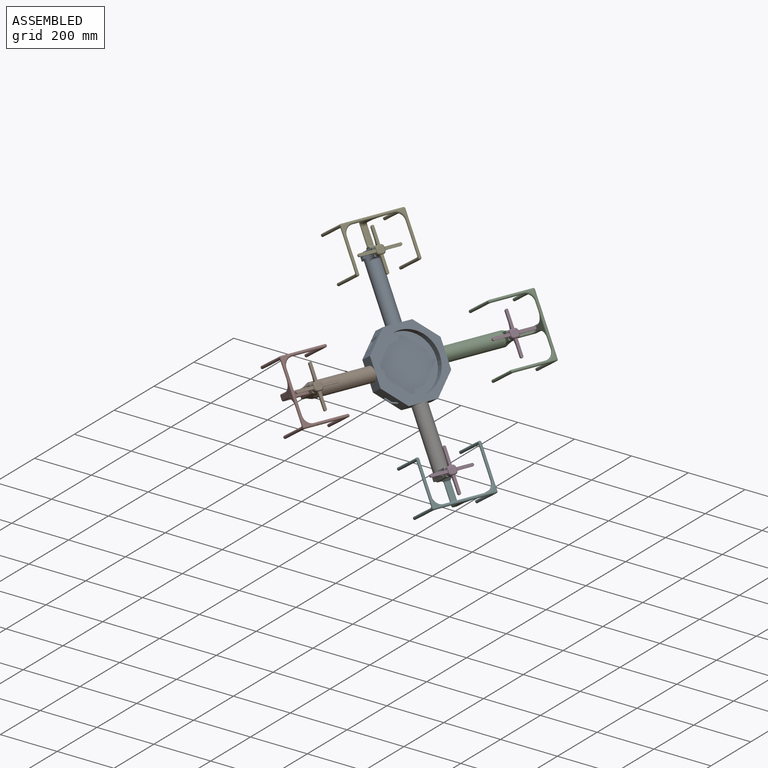
[diagram: assembled view]
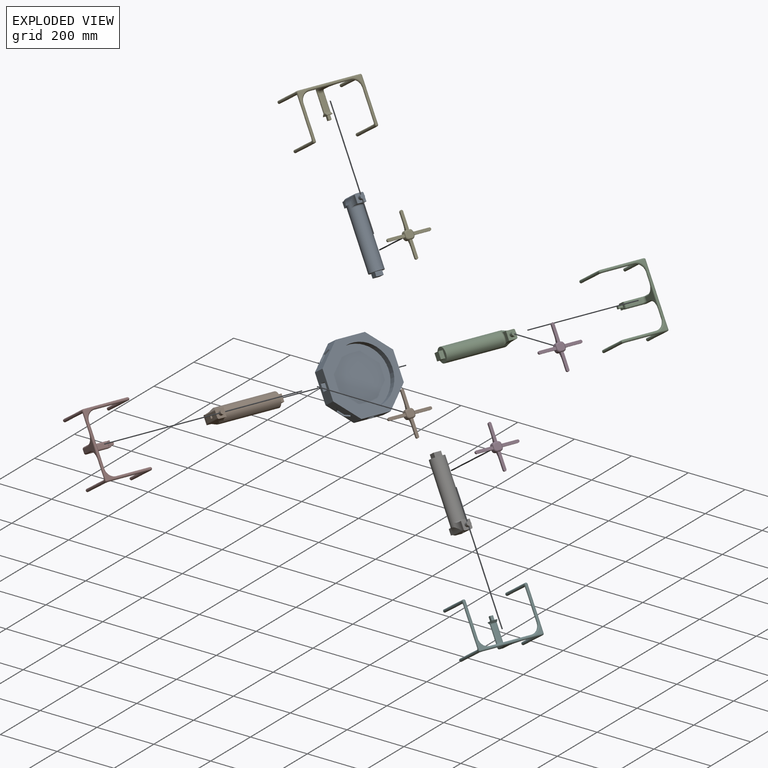
[diagram: exploded view]
GUIDED TOUR — MATED ASSEMBLY (Onshape document 5ddf4c11a638fa7d3c791eff, AutoMate assembly 5ddf4c11a638fa7d3c791eff_e8b8767c8db5815c13600c57_59f446b05d3c1877de8c272b_default)

This assembly has 13 components, labeled P0..P12 below (a component is one placed occurrence of a part; the same part can appear more than once), held together by 12 mates. A mate is a constraint between two components; its type names the relative motion it leaves free:
  FASTENED — locks the two components together rigidly (no relative motion),
  REVOLUTE — leaves rotation about the listed axis free (a hinge).
Axis/direction vectors are unit vectors and 'through' points are millimeter coordinates, both in the assembly's world frame.

MATES
  1. FASTENED "Fastened 5": P5 <-> P6, direction (-0.530, 0.219, 0.819) through (232.93, -71.47, 219.62) mm
  2. FASTENED "Fastened 1": P6 <-> P0, direction (-0.530, 0.219, 0.819) through (101.59, -17.06, 400.85) mm
  3. FASTENED "Fastened 4": P8 <-> P0, direction (0.530, -0.219, -0.819) through (-10.45, 29.34, 574.04) mm
  4. REVOLUTE "Revolute 3": P1 <-> P9, axis (-0.757, 0.313, -0.574) through (-37.49, -322.82, 521.86) mm
  5. REVOLUTE "Revolute 1": P11 <-> P6, axis (-0.757, 0.313, -0.574) through (268.88, -86.36, 246.86) mm
  6. FASTENED "Fastened 6": P2 <-> P10, direction (-0.383, -0.924, 0.000) through (183.50, 312.38, 494.61) mm
  7. FASTENED "Fastened 7": P4 <-> P8, direction (0.530, -0.219, -0.819) through (-122.87, 75.91, 769.61) mm
  8. FASTENED "Fastened 3": P9 <-> P0, direction (0.383, 0.924, 0.000) through (5.12, -91.52, 487.44) mm
  9. FASTENED "Fastened 8": P7 <-> P9, direction (0.383, 0.924, 0.000) through (-73.44, -307.93, 494.61) mm
  10. REVOLUTE "Revolute 2": P3 <-> P10, axis (-0.757, 0.313, -0.574) through (219.45, 297.49, 521.86) mm
  11. FASTENED "Fastened 2": P10 <-> P0, direction (-0.383, -0.924, 0.000) through (86.03, 103.81, 487.44) mm
  12. REVOLUTE "Revolute 4": P12 <-> P8, axis (-0.757, 0.313, -0.574) through (-86.92, 61.02, 796.86) mm

ASSEMBLY ORDER
  1. P10 — the base component [order verified]
  2. P2 [order verified]
  3. P0 [order verified]
  4. P8 [order verified]
  5. P4 [order verified]
  6. P6 [order verified]
  7. P5 [order verified]
  8. P9 [order verified]
  9. P7 [order verified]
  10. P12 [order verified]
  11. P11 [order verified]
  12. P3 [order verified]
  13. P1 [order verified]
(P0, P1, P2, P3, P4, P5, P6, P7, P8, P9, P11, P12 verified with a relaxed clearance tolerance: the source model stores slight part interference there.)
Order-tag legend:
  [order verified] — this step's position reverses a verified removal order: the component was checked to insert without passing through the ones already placed.

Of the 13 components, 1 carries the full construction recipe — the FeatureScript program that regenerates the part's solid from scratch; the rest are supplied as boundary geometry only.
Because this assembly has more than 12 components, the tour below covers the 12 most significant ones individually (every recipe-attached component first, then the largest by part volume), in assembly order; the remaining 1 are summarized together in a grouped section at the end.
Each toured component is shown spotlighted twice — in the assembled view, then in the exploded view, where a leader line traces a displaced component back to its assembled socket (saturated green if recipe-attached, orange if geometry-only; every other component desaturated gray) — followed by its recipe or geometry summary and the mates that hold it.
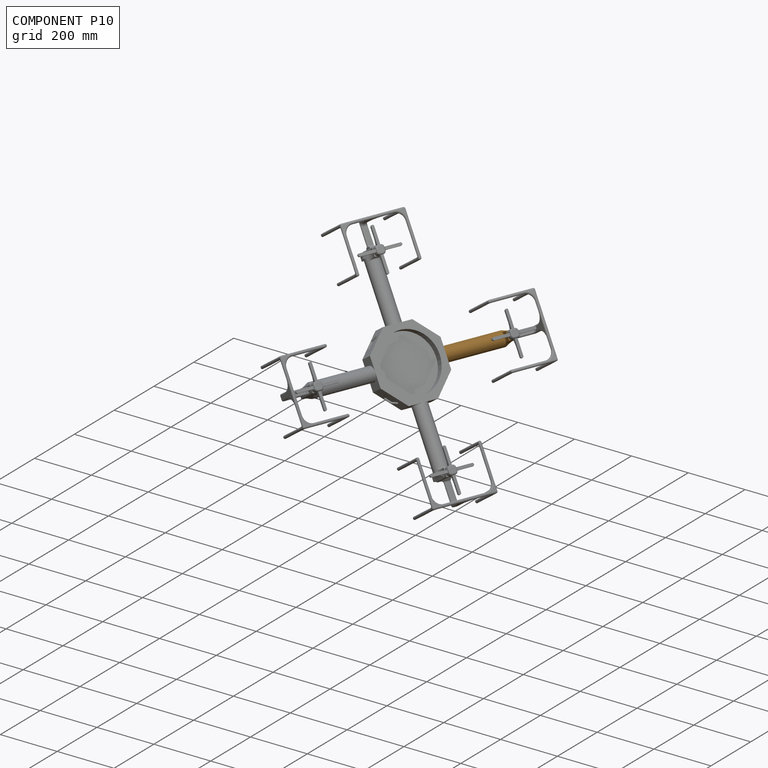
[diagram: component P10 — assembled]
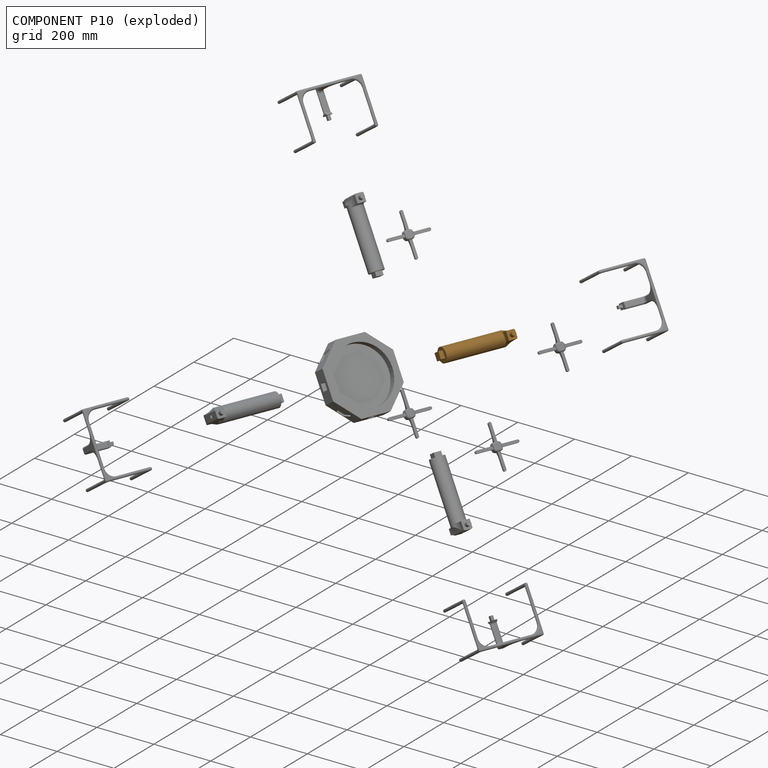
[diagram: component P10 — exploded]
COMPONENT P10 — geometry summary (no construction recipe available for this part):
  bounding box: 245.0 x 105.0 x 62.9 mm
  B-rep topology: 1 solid, 36 faces, 178 edges
  volume: 485700 mm^3 (30% of its bounding box)
  symmetry: mirror-symmetric across its y mid-plane
Held by: FASTENED mate "Fastened 6" to P2; REVOLUTE mate "Revolute 2" to P3; FASTENED mate "Fastened 2" to P0.
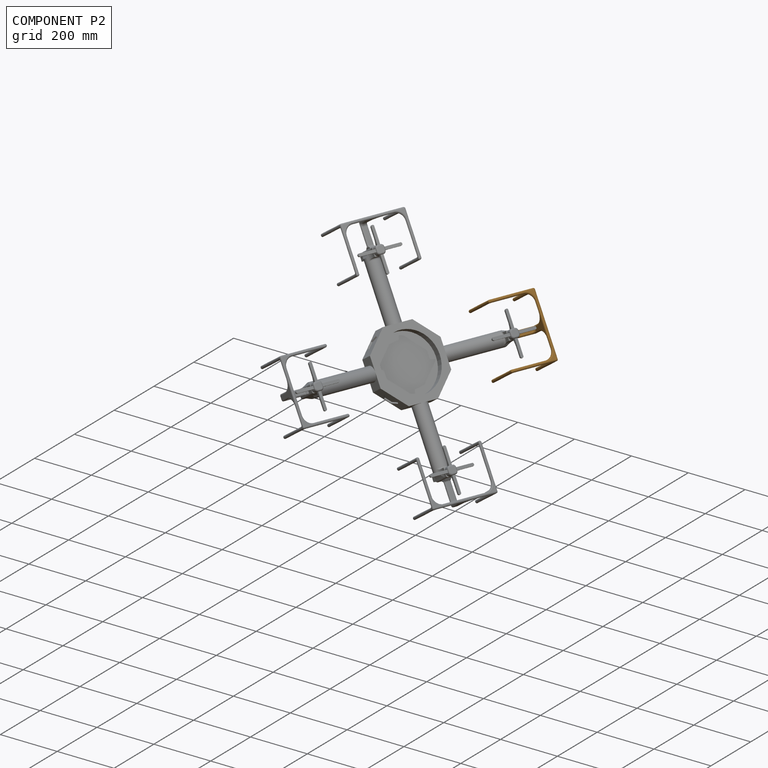
[diagram: component P2 — assembled]
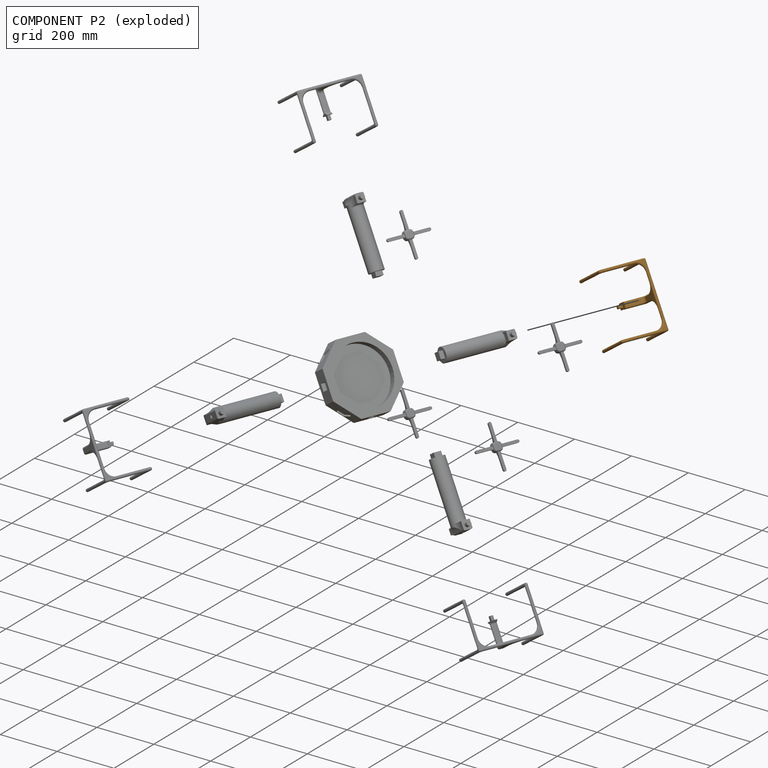
[diagram: component P2 — exploded]
COMPONENT P2 — geometry summary (no construction recipe available for this part):
  bounding box: 226.0 x 161.7 x 131.7 mm
  B-rep topology: 1 solid, 71 faces, 392 edges
  volume: 119252 mm^3 (2% of its bounding box)
  symmetry: mirror-symmetric across its x mid-plane
Held by: FASTENED mate "Fastened 6" to P10.
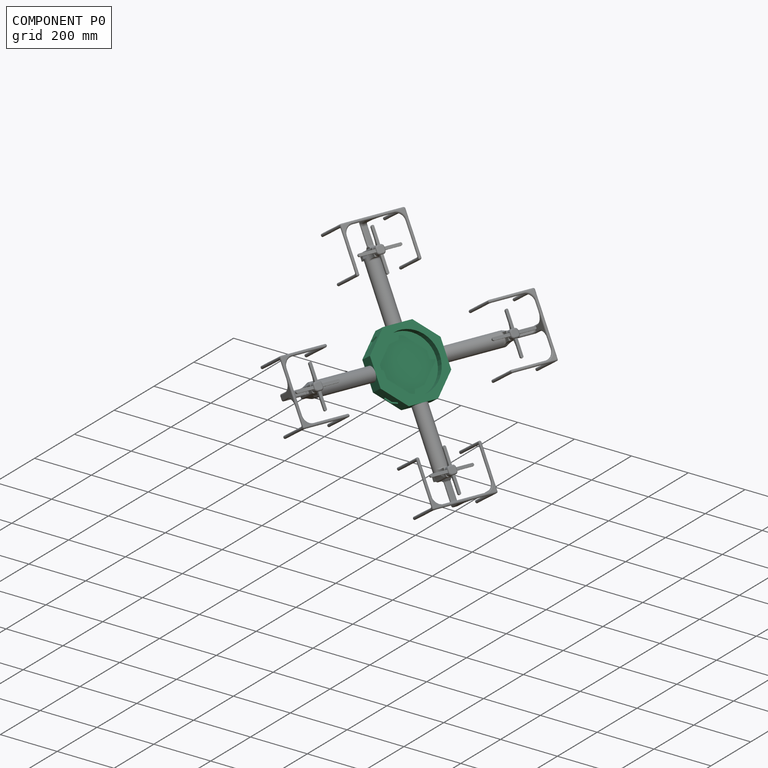
[diagram: component P0 — assembled]
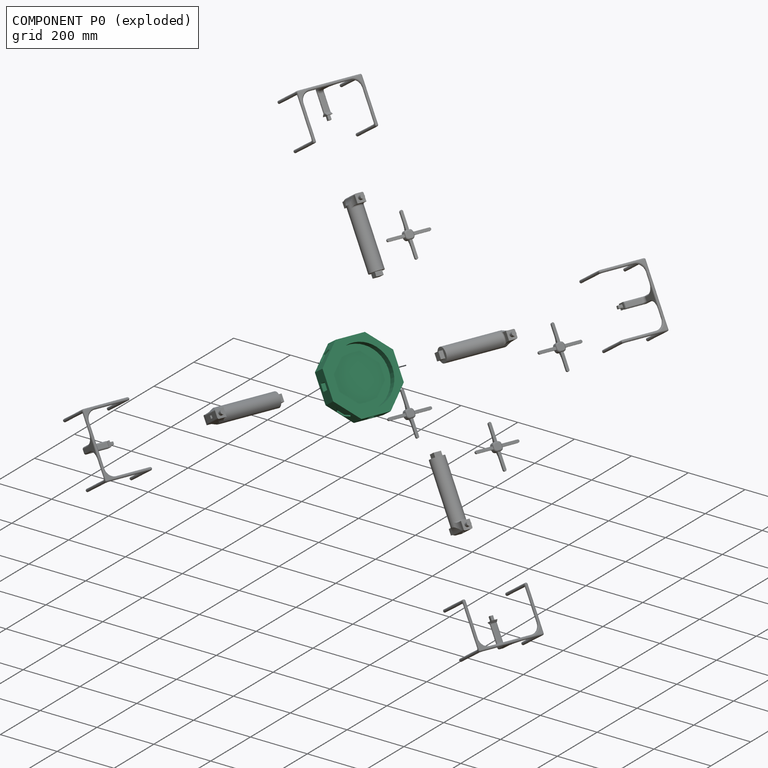
[diagram: component P0 — exploded]
COMPONENT P0 — recipe-attached (CADFS 00303719, mesh-verified: the recipe's output STEP matches this component's geometry to below the mesh-comparison resolution (tessellation chordal tolerance ~0.564 mm)).
Held by: FASTENED mate "Fastened 1" to P6; FASTENED mate "Fastened 4" to P8; FASTENED mate "Fastened 3" to P9; FASTENED mate "Fastened 2" to P10.
Construction recipe (FeatureScript — the CAD program that rebuilds this solid; sketch coordinates are in the units given by the * unit suffixes, e.g. mm):

FeatureScript 1511;
import(path : "onshape/std/geometry.fs", version : "1511.0");
import(path : "onshape/std/common.fs", version : "1511.0");
const mm = millimeter;
const VERTEX = EntityType.VERTEX;
const EDGE = EntityType.EDGE;
const FACE = EntityType.FACE;
const BODY = EntityType.BODY;
function v(x, y){return vector(x, y);}
function OD(order){return orderDisambiguation(order);}
function OSD(set){return originalSetDisambiguation(set);}
function TD(topology){return topologyDisambiguation(topology);}
function TDD(query){return trueDependencyDisambiguation(query);}
function sQuery(a, b, c) {return sketchEntityQuery(a, b, c);}

annotation { "Feature Type Name" : "Feature", "Feature Type Description" : "" }
export const myFeature = defineFeature(function(context is Context, id is Id, definition is map)
    precondition{}
    {
        {
            var Q0;
            Q0=qCreatedBy(makeId("Top.planeOp"),FACE);
            var sketch = newSketch(context, id + "F0", { "sketchPlane" : qUnion([Q0])});
            skCircle(sketch, "E0.cCircle", {"center": v(0, 0) * mm, "radius": 130.66 * mm, "construction": true});
            skLineSegment(sketch, "E0.0", {"start": v(0, -130.66) * mm, "end": v(-92.39, -92.39) * mm});
            skLineSegment(sketch, "E0.1", {"start": v(-92.39, -92.39) * mm, "end": v(-130.66, 0) * mm});
            skLineSegment(sketch, "E0.2", {"start": v(-130.66, 0) * mm, "end": v(-92.39, 92.39) * mm});
            skLineSegment(sketch, "E0.3", {"start": v(-92.39, 92.39) * mm, "end": v(0, 130.66) * mm});
            skLineSegment(sketch, "E0.4", {"start": v(0, 130.66) * mm, "end": v(92.39, 92.39) * mm});
            skLineSegment(sketch, "E0.5", {"start": v(92.39, 92.39) * mm, "end": v(130.66, 0) * mm});
            skLineSegment(sketch, "E0.6", {"start": v(130.66, 0) * mm, "end": v(92.39, -92.39) * mm});
            skLineSegment(sketch, "E0.7", {"start": v(92.39, -92.39) * mm, "end": v(0, -130.66) * mm});
            skSolve(sketch);
        }
        {
            var Q0;
            Q0=makeQuery(id+"F0.imprint","IMPRINT",FACE,{"disambiguationData":[TD([[makeQuery(id+"F0.imprint","IMPRINT",EDGE,{"derivedFrom":sQuery(id+"F0.wireOp",EDGE,"E0.0")}),-1.0]])]});
            extrude(context, id + "F1", {"entities" : qUnion([Q0]), "depth" : 50 * mm});
        }
        {
            var Q0;
            Q0=makeQuery(id+"F1.opExtrude","SWEPT_FACE",FACE,{"disambiguationData":[OSD([sQuery(id+"F0.wireOp",EDGE,"E0.0")])]});
            var sketch = newSketch(context, id + "F2", { "sketchPlane" : qUnion([Q0])});
            skLineSegment(sketch, "E1.bottom", {"start": v(12.5, 12.5) * mm, "end": v(-12.5, 12.5) * mm});
            skLineSegment(sketch, "E1.top", {"start": v(12.5, 37.5) * mm, "end": v(-12.5, 37.5) * mm});
            skLineSegment(sketch, "E1.left", {"start": v(12.5, 12.5) * mm, "end": v(12.5, 37.5) * mm});
            skLineSegment(sketch, "E1.right", {"start": v(-12.5, 12.5) * mm, "end": v(-12.5, 37.5) * mm});
            skPoint(sketch, "E1.middle", {"position": v(0, 25) * mm});
            skPoint(sketch, "E1.middle.positionSnap0", {"position": v(-50, 25) * mm});
            skPoint(sketch, "E1.centerSnap0", {"position": v(-50, 25) * mm});
            skSolve(sketch);
        }
        {
            var Q0;
            Q0=makeQuery(id+"F2.imprint","IMPRINT",FACE,{"disambiguationData":[TD([[makeQuery(id+"F2.imprint","IMPRINT",EDGE,{"derivedFrom":sQuery(id+"F2.wireOp",EDGE,"E1.bottom")}),-1.0]])]});
            extrude(context, id + "F3", {"entities" : qUnion([Q0]), "operationType" : NewBodyOperationType.REMOVE, "oppositeDirection" : true, "depth" : 15 * mm});
        }
        {
            var Q0;
            Q0=makeQuery(id+"F1.opExtrude","SWEPT_FACE",FACE,{"disambiguationData":[OSD([sQuery(id+"F0.wireOp",EDGE,"E0.2")])]});
            var sketch = newSketch(context, id + "F4", { "sketchPlane" : qUnion([Q0])});
            skLineSegment(sketch, "E2.bottom", {"start": v(12.5, 12.5) * mm, "end": v(-12.5, 12.5) * mm});
            skLineSegment(sketch, "E2.top", {"start": v(12.5, 37.5) * mm, "end": v(-12.5, 37.5) * mm});
            skLineSegment(sketch, "E2.left", {"start": v(12.5, 12.5) * mm, "end": v(12.5, 37.5) * mm});
            skLineSegment(sketch, "E2.right", {"start": v(-12.5, 12.5) * mm, "end": v(-12.5, 37.5) * mm});
            skPoint(sketch, "E2.middle", {"position": v(0, 25) * mm});
            skPoint(sketch, "E2.middle.positionSnap0", {"position": v(-50, 25) * mm});
            skPoint(sketch, "E2.centerSnap0", {"position": v(-50, 25) * mm});
            skSolve(sketch);
        }
        {
            var Q0;
            Q0=makeQuery(id+"F4.imprint","IMPRINT",FACE,{"disambiguationData":[TD([[makeQuery(id+"F4.imprint","IMPRINT",EDGE,{"derivedFrom":sQuery(id+"F4.wireOp",EDGE,"E2.bottom")}),-1.0]])]});
            extrude(context, id + "F5", {"entities" : qUnion([Q0]), "operationType" : NewBodyOperationType.REMOVE, "oppositeDirection" : true, "depth" : 15 * mm});
        }
        {
            var Q0;
            Q0=makeQuery(id+"F1.opExtrude","SWEPT_FACE",FACE,{"disambiguationData":[OSD([sQuery(id+"F0.wireOp",EDGE,"E0.4")])]});
            var sketch = newSketch(context, id + "F6", { "sketchPlane" : qUnion([Q0])});
            skLineSegment(sketch, "E3.bottom", {"start": v(12.5, 12.5) * mm, "end": v(-12.5, 12.5) * mm});
            skLineSegment(sketch, "E3.top", {"start": v(12.5, 37.5) * mm, "end": v(-12.5, 37.5) * mm});
            skLineSegment(sketch, "E3.left", {"start": v(12.5, 12.5) * mm, "end": v(12.5, 37.5) * mm});
            skLineSegment(sketch, "E3.right", {"start": v(-12.5, 12.5) * mm, "end": v(-12.5, 37.5) * mm});
            skPoint(sketch, "E3.middle", {"position": v(0, 25) * mm});
            skPoint(sketch, "E3.middle.positionSnap0", {"position": v(-50, 25) * mm});
            skPoint(sketch, "E3.centerSnap0", {"position": v(-50, 25) * mm});
            skSolve(sketch);
        }
        {
            var Q0;
            Q0=makeQuery(id+"F6.imprint","IMPRINT",FACE,{"disambiguationData":[TD([[makeQuery(id+"F6.imprint","IMPRINT",EDGE,{"derivedFrom":sQuery(id+"F6.wireOp",EDGE,"E3.bottom")}),-1.0]])]});
            extrude(context, id + "F7", {"entities" : qUnion([Q0]), "operationType" : NewBodyOperationType.REMOVE, "oppositeDirection" : true, "depth" : 15 * mm});
        }
        {
            var Q0;
            Q0=makeQuery(id+"F1.opExtrude","SWEPT_FACE",FACE,{"disambiguationData":[OSD([sQuery(id+"F0.wireOp",EDGE,"E0.6")])]});
            var sketch = newSketch(context, id + "F8", { "sketchPlane" : qUnion([Q0])});
            skLineSegment(sketch, "E4.bottom", {"start": v(12.5, 12.5) * mm, "end": v(-12.5, 12.5) * mm});
            skLineSegment(sketch, "E4.top", {"start": v(12.5, 37.5) * mm, "end": v(-12.5, 37.5) * mm});
            skLineSegment(sketch, "E4.left", {"start": v(12.5, 12.5) * mm, "end": v(12.5, 37.5) * mm});
            skLineSegment(sketch, "E4.right", {"start": v(-12.5, 12.5) * mm, "end": v(-12.5, 37.5) * mm});
            skPoint(sketch, "E4.middle", {"position": v(0, 25) * mm});
            skPoint(sketch, "E4.middle.positionSnap0", {"position": v(-50, 25) * mm});
            skPoint(sketch, "E4.centerSnap0", {"position": v(-50, 25) * mm});
            skSolve(sketch);
        }
        {
            var Q0;
            Q0=makeQuery(id+"F8.imprint","IMPRINT",FACE,{"disambiguationData":[TD([[makeQuery(id+"F8.imprint","IMPRINT",EDGE,{"derivedFrom":sQuery(id+"F8.wireOp",EDGE,"E4.bottom")}),-1.0]])]});
            extrude(context, id + "F9", {"entities" : qUnion([Q0]), "operationType" : NewBodyOperationType.REMOVE, "oppositeDirection" : true, "depth" : 15 * mm});
        }
        {
            var Q0;
            Q0=makeQuery(id+"F1.opExtrude","SWEPT_FACE",FACE,{"disambiguationData":[OSD([sQuery(id+"F0.wireOp",EDGE,"E0.7")])]});
            var sketch = newSketch(context, id + "F10", { "sketchPlane" : qUnion([Q0])});
            skCircle(sketch, "E5.cCircle", {"center": v(0, 25) * mm, "radius": 21.65 * mm, "construction": true});
            skPoint(sketch, "E5.cCircle.centerSnap0", {"position": v(-50, 25) * mm});
            skLineSegment(sketch, "E5.0", {"start": v(25, 25) * mm, "end": v(12.5, 3.35) * mm});
            skLineSegment(sketch, "E5.1", {"start": v(12.5, 3.35) * mm, "end": v(-12.5, 3.35) * mm});
            skLineSegment(sketch, "E5.2", {"start": v(-12.5, 3.35) * mm, "end": v(-25, 25) * mm});
            skLineSegment(sketch, "E5.3", {"start": v(-25, 25) * mm, "end": v(-12.5, 46.65) * mm});
            skLineSegment(sketch, "E5.4", {"start": v(-12.5, 46.65) * mm, "end": v(12.5, 46.65) * mm});
            skLineSegment(sketch, "E5.5", {"start": v(12.5, 46.65) * mm, "end": v(25, 25) * mm});
            skPoint(sketch, "E5.0.midPoint", {"position": v(18.75, 14.17) * mm});
            skSolve(sketch);
        }
        {
            var Q0;
            Q0=makeQuery(id+"F10.imprint","IMPRINT",FACE,{"disambiguationData":[TD([[makeQuery(id+"F10.imprint","IMPRINT",EDGE,{"derivedFrom":sQuery(id+"F10.wireOp",EDGE,"E5.0")}),-1.0]])]});
            extrude(context, id + "F11", {"entities" : qUnion([Q0]), "operationType" : NewBodyOperationType.REMOVE, "oppositeDirection" : true, "depth" : 5 * mm});
        }
        {
            var Q0;
            Q0=makeQuery(id+"F1.opExtrude","SWEPT_FACE",FACE,{"disambiguationData":[OSD([sQuery(id+"F0.wireOp",EDGE,"E0.5")])]});
            var sketch = newSketch(context, id + "F12", { "sketchPlane" : qUnion([Q0])});
            skCircle(sketch, "E6.cCircle", {"center": v(0, 25) * mm, "radius": 21.65 * mm, "construction": true});
            skPoint(sketch, "E6.cCircle.centerSnap0", {"position": v(0, 50) * mm});
            skPoint(sketch, "E6.cCircle.centerSnap1", {"position": v(-50, 25) * mm});
            skLineSegment(sketch, "E6.0", {"start": v(25, 25) * mm, "end": v(12.5, 3.35) * mm});
            skLineSegment(sketch, "E6.1", {"start": v(12.5, 3.35) * mm, "end": v(-12.5, 3.35) * mm});
            skLineSegment(sketch, "E6.2", {"start": v(-12.5, 3.35) * mm, "end": v(-25, 25) * mm});
            skLineSegment(sketch, "E6.3", {"start": v(-25, 25) * mm, "end": v(-12.5, 46.65) * mm});
            skLineSegment(sketch, "E6.4", {"start": v(-12.5, 46.65) * mm, "end": v(12.5, 46.65) * mm});
            skLineSegment(sketch, "E6.5", {"start": v(12.5, 46.65) * mm, "end": v(25, 25) * mm});
            skPoint(sketch, "E6.0.midPoint", {"position": v(18.75, 14.17) * mm});
            skSolve(sketch);
        }
        {
            var Q0;
            Q0=makeQuery(id+"F12.imprint","IMPRINT",FACE,{"disambiguationData":[TD([[makeQuery(id+"F12.imprint","IMPRINT",EDGE,{"derivedFrom":sQuery(id+"F12.wireOp",EDGE,"E6.0")}),-1.0]])]});
            extrude(context, id + "F13", {"entities" : qUnion([Q0]), "operationType" : NewBodyOperationType.REMOVE, "oppositeDirection" : true, "depth" : 5 * mm});
        }
        {
            var Q0;
            Q0=makeQuery(id+"F1.opExtrude","SWEPT_FACE",FACE,{"disambiguationData":[OSD([sQuery(id+"F0.wireOp",EDGE,"E0.1")])]});
            var sketch = newSketch(context, id + "F14", { "sketchPlane" : qUnion([Q0])});
            skCircle(sketch, "E7.cCircle", {"center": v(0, 25) * mm, "radius": 21.65 * mm, "construction": true});
            skPoint(sketch, "E7.cCircle.centerSnap0", {"position": v(-50, 25) * mm});
            skLineSegment(sketch, "E7.0", {"start": v(-12.5, 46.65) * mm, "end": v(12.5, 46.65) * mm});
            skLineSegment(sketch, "E7.1", {"start": v(12.5, 46.65) * mm, "end": v(25, 25) * mm});
            skLineSegment(sketch, "E7.2", {"start": v(25, 25) * mm, "end": v(12.5, 3.35) * mm});
            skLineSegment(sketch, "E7.3", {"start": v(12.5, 3.35) * mm, "end": v(-12.5, 3.35) * mm});
            skLineSegment(sketch, "E7.4", {"start": v(-12.5, 3.35) * mm, "end": v(-25, 25) * mm});
            skLineSegment(sketch, "E7.5", {"start": v(-25, 25) * mm, "end": v(-12.5, 46.65) * mm});
            skPoint(sketch, "E7.0.midPoint", {"position": v(0, 46.65) * mm});
            skSolve(sketch);
        }
        {
            var Q0;
            Q0=makeQuery(id+"F14.imprint","IMPRINT",FACE,{"disambiguationData":[TD([[makeQuery(id+"F14.imprint","IMPRINT",EDGE,{"derivedFrom":sQuery(id+"F14.wireOp",EDGE,"E7.0")}),-1.0]])]});
            extrude(context, id + "F15", {"entities" : qUnion([Q0]), "operationType" : NewBodyOperationType.REMOVE, "oppositeDirection" : true, "depth" : 5 * mm});
        }
        {
            var Q0;
            Q0=makeQuery(id+"F1.opExtrude","SWEPT_FACE",FACE,{"disambiguationData":[OSD([sQuery(id+"F0.wireOp",EDGE,"E0.3")])]});
            var sketch = newSketch(context, id + "F16", { "sketchPlane" : qUnion([Q0])});
            skCircle(sketch, "E8.cCircle", {"center": v(0, 25) * mm, "radius": 21.65 * mm, "construction": true});
            skPoint(sketch, "E8.cCircle.centerSnap0", {"position": v(-50, 25) * mm});
            skPoint(sketch, "E8.cCircle.perimeterSnap0", {"position": v(0, 50) * mm});
            skLineSegment(sketch, "E8.0", {"start": v(-12.5, 46.65) * mm, "end": v(12.5, 46.65) * mm});
            skLineSegment(sketch, "E8.1", {"start": v(12.5, 46.65) * mm, "end": v(25, 25) * mm});
            skLineSegment(sketch, "E8.2", {"start": v(25, 25) * mm, "end": v(12.5, 3.35) * mm});
            skLineSegment(sketch, "E8.3", {"start": v(12.5, 3.35) * mm, "end": v(-12.5, 3.35) * mm});
            skLineSegment(sketch, "E8.4", {"start": v(-12.5, 3.35) * mm, "end": v(-25, 25) * mm});
            skLineSegment(sketch, "E8.5", {"start": v(-25, 25) * mm, "end": v(-12.5, 46.65) * mm});
            skPoint(sketch, "E8.0.midPoint", {"position": v(0, 46.65) * mm});
            skPoint(sketch, "E8.0.midPoint.positionSnap0", {"position": v(0, 50) * mm});
            skSolve(sketch);
        }
        {
            var Q0;
            Q0=makeQuery(id+"F16.imprint","IMPRINT",FACE,{"disambiguationData":[TD([[makeQuery(id+"F16.imprint","IMPRINT",EDGE,{"derivedFrom":sQuery(id+"F16.wireOp",EDGE,"E8.0")}),-1.0]])]});
            extrude(context, id + "F17", {"entities" : qUnion([Q0]), "operationType" : NewBodyOperationType.REMOVE, "oppositeDirection" : true, "depth" : 5 * mm});
        }
        {
            var Q0;
            Q0=makeQuery(id+"F1.opExtrude","CAP_FACE",FACE,{"disambiguationData":[OSD([sQuery(id+"F0.wireOp",EDGE,"E0.0"),sQuery(id+"F0.wireOp",EDGE,"E0.1"),sQuery(id+"F0.wireOp",EDGE,"E0.2"),sQuery(id+"F0.wireOp",EDGE,"E0.3"),sQuery(id+"F0.wireOp",EDGE,"E0.4"),sQuery(id+"F0.wireOp",EDGE,"E0.5"),sQuery(id+"F0.wireOp",EDGE,"E0.6"),sQuery(id+"F0.wireOp",EDGE,"E0.7")])],"isStart":false});
            var sketch = newSketch(context, id + "F18", { "sketchPlane" : qUnion([Q0])});
            skCircle(sketch, "E9", {"center": v(0, 0) * mm, "radius": 100 * mm});
            skSolve(sketch);
        }
        {
            var Q0;
            Q0 = qSketchRegion(id + "F18", true);
            extrude(context, id + "F19", {"entities" : qUnion([Q0]), "operationType" : NewBodyOperationType.REMOVE, "oppositeDirection" : true, "depth" : 25 * mm});
        }
        {
            var Q0;
            Q0=makeQuery(id+"F1.opExtrude","CAP_FACE",FACE,{"disambiguationData":[OSD([sQuery(id+"F0.wireOp",EDGE,"E0.0"),sQuery(id+"F0.wireOp",EDGE,"E0.1"),sQuery(id+"F0.wireOp",EDGE,"E0.2"),sQuery(id+"F0.wireOp",EDGE,"E0.3"),sQuery(id+"F0.wireOp",EDGE,"E0.4"),sQuery(id+"F0.wireOp",EDGE,"E0.5"),sQuery(id+"F0.wireOp",EDGE,"E0.6"),sQuery(id+"F0.wireOp",EDGE,"E0.7")])],"isStart":true});
            var sketch = newSketch(context, id + "F20", { "sketchPlane" : qUnion([Q0])});
            skCircle(sketch, "E10", {"center": v(0, 0) * mm, "radius": 100 * mm});
            skSolve(sketch);
        }
        {
            var Q0;
            Q0 = qSketchRegion(id + "F20", true);
            extrude(context, id + "F21", {"entities" : qUnion([Q0]), "operationType" : NewBodyOperationType.ADD, "depth" : 20 * mm});
        }
        {
            var Q0;
            Q0=makeQuery(id+"F1.opExtrude","SWEPT_BODY",BODY,{"disambiguationData":[OSD([sQuery(id+"F0.wireOp",EDGE,"E0.0"),sQuery(id+"F0.wireOp",EDGE,"E0.1"),sQuery(id+"F0.wireOp",EDGE,"E0.2"),sQuery(id+"F0.wireOp",EDGE,"E0.3"),sQuery(id+"F0.wireOp",EDGE,"E0.4"),sQuery(id+"F0.wireOp",EDGE,"E0.5"),sQuery(id+"F0.wireOp",EDGE,"E0.6"),sQuery(id+"F0.wireOp",EDGE,"E0.7")])]});
            transform(context, id + "F22", {"entities" : qUnion([Q0]), "transformType" : TransformType.TRANSLATION_3D, "dx" : 0 * mm, "dy" : 0 * mm, "dz" : 10 * mm, "makeCopy" : false});
        }
    });
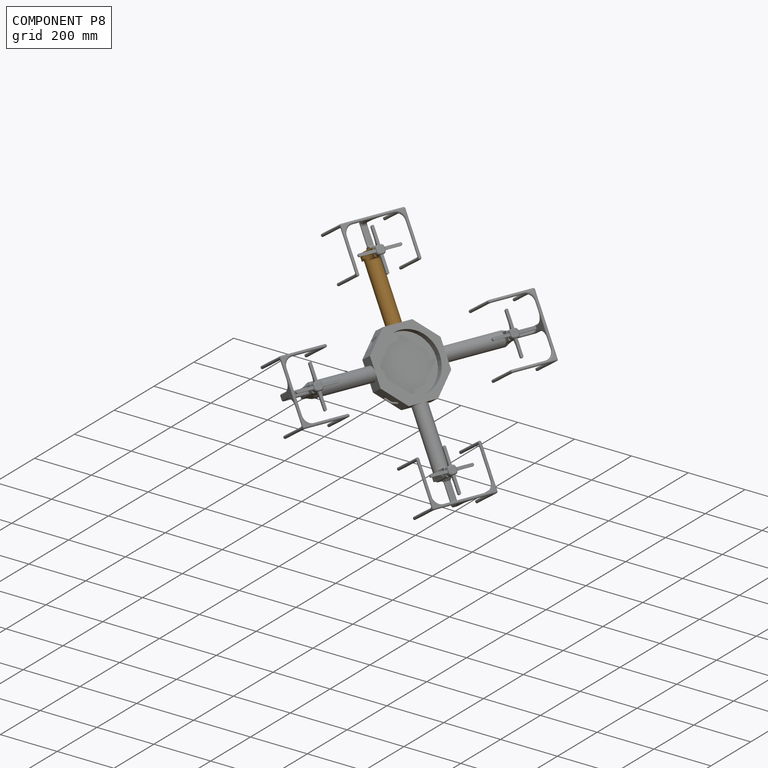
[diagram: component P8 — assembled]
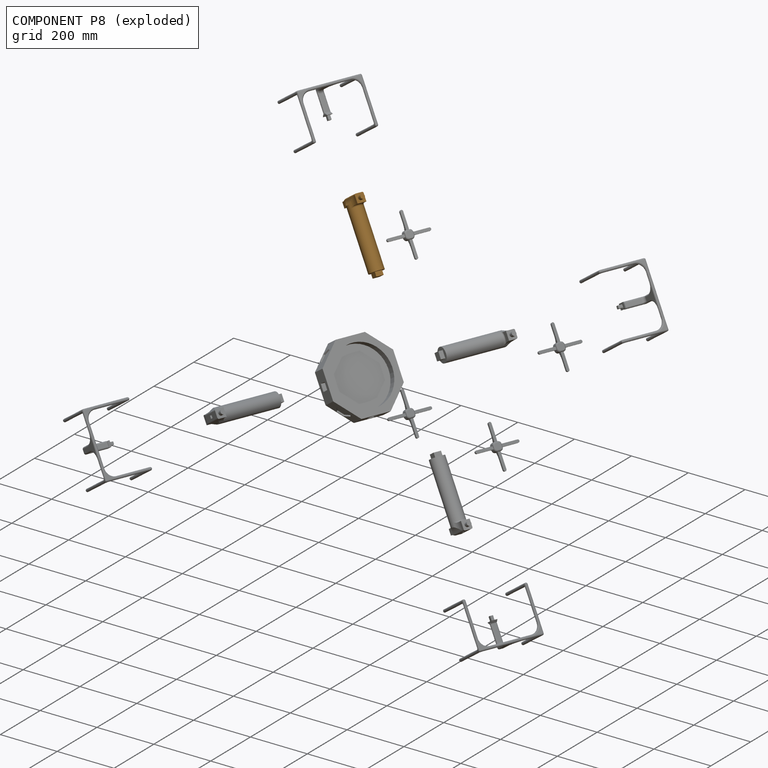
[diagram: component P8 — exploded]
COMPONENT P8 — geometry summary (no construction recipe available for this part):
  bounding box: 245.0 x 105.0 x 62.9 mm
  B-rep topology: 1 solid, 36 faces, 178 edges
  volume: 485700 mm^3 (30% of its bounding box)
  symmetry: mirror-symmetric across its y mid-plane
Held by: FASTENED mate "Fastened 4" to P0; FASTENED mate "Fastened 7" to P4; REVOLUTE mate "Revolute 4" to P12.
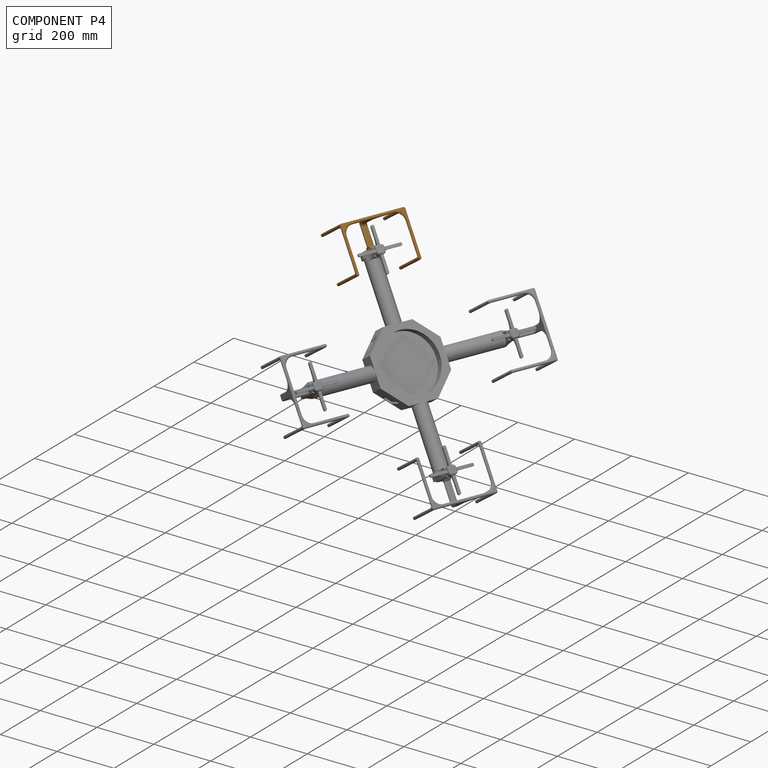
[diagram: component P4 — assembled]
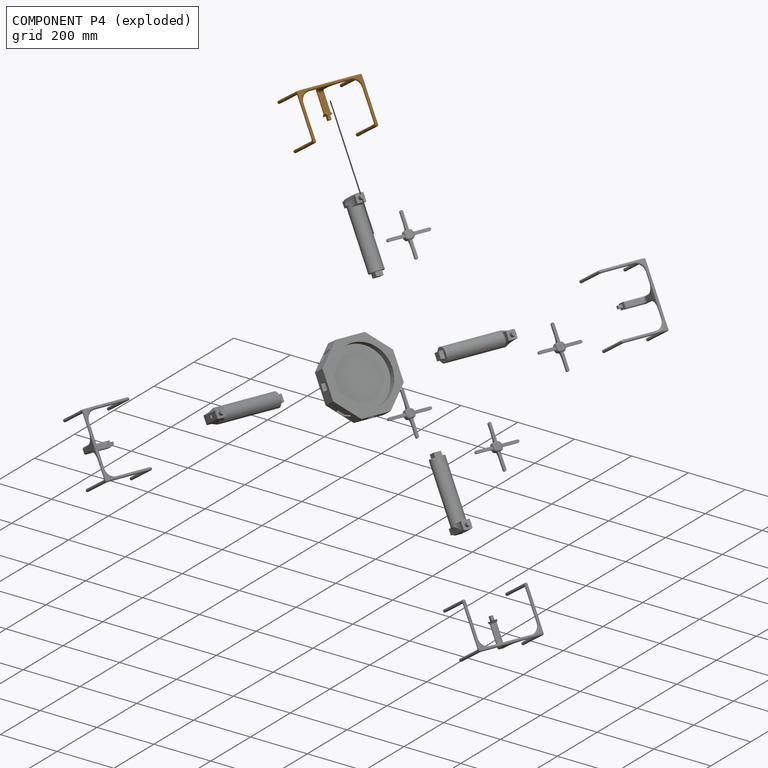
[diagram: component P4 — exploded]
COMPONENT P4 — geometry summary (no construction recipe available for this part):
  bounding box: 226.0 x 161.7 x 131.7 mm
  B-rep topology: 1 solid, 71 faces, 392 edges
  volume: 119252 mm^3 (2% of its bounding box)
  symmetry: mirror-symmetric across its x mid-plane
Held by: FASTENED mate "Fastened 7" to P8.
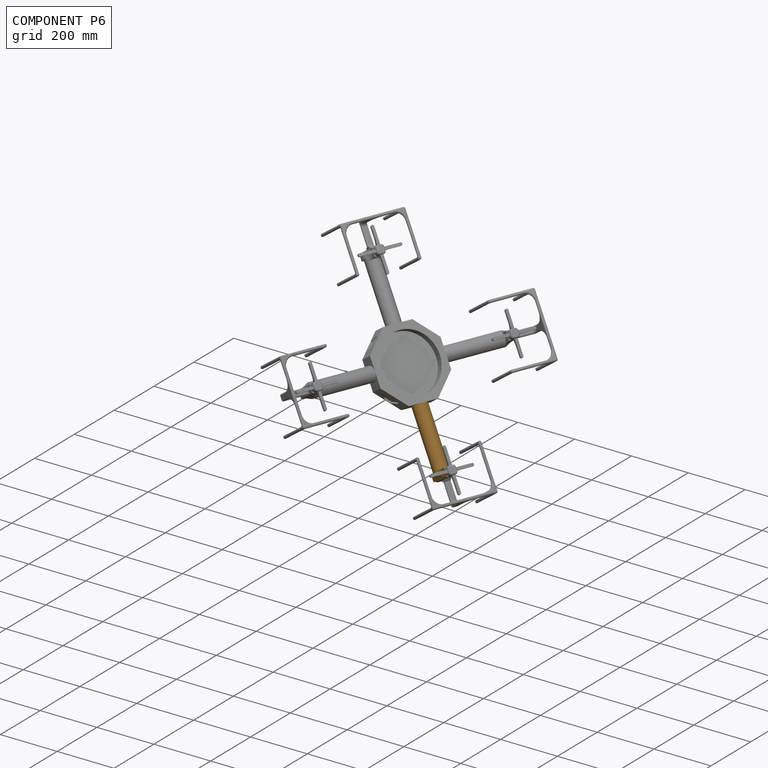
[diagram: component P6 — assembled]
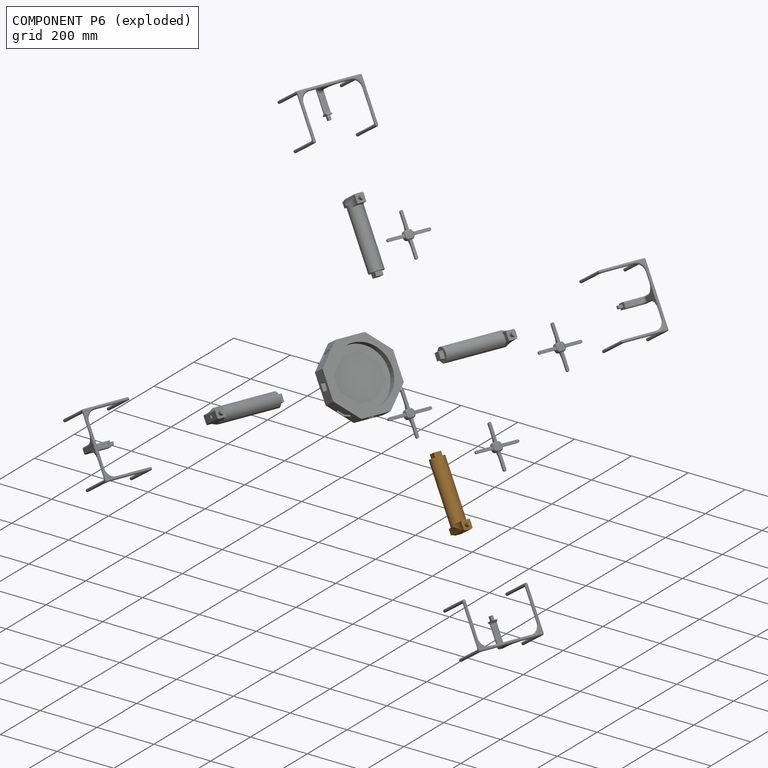
[diagram: component P6 — exploded]
COMPONENT P6 — geometry summary (no construction recipe available for this part):
  bounding box: 245.0 x 105.0 x 62.9 mm
  B-rep topology: 1 solid, 36 faces, 178 edges
  volume: 485700 mm^3 (30% of its bounding box)
  symmetry: mirror-symmetric across its y mid-plane
Held by: FASTENED mate "Fastened 5" to P5; FASTENED mate "Fastened 1" to P0; REVOLUTE mate "Revolute 1" to P11.
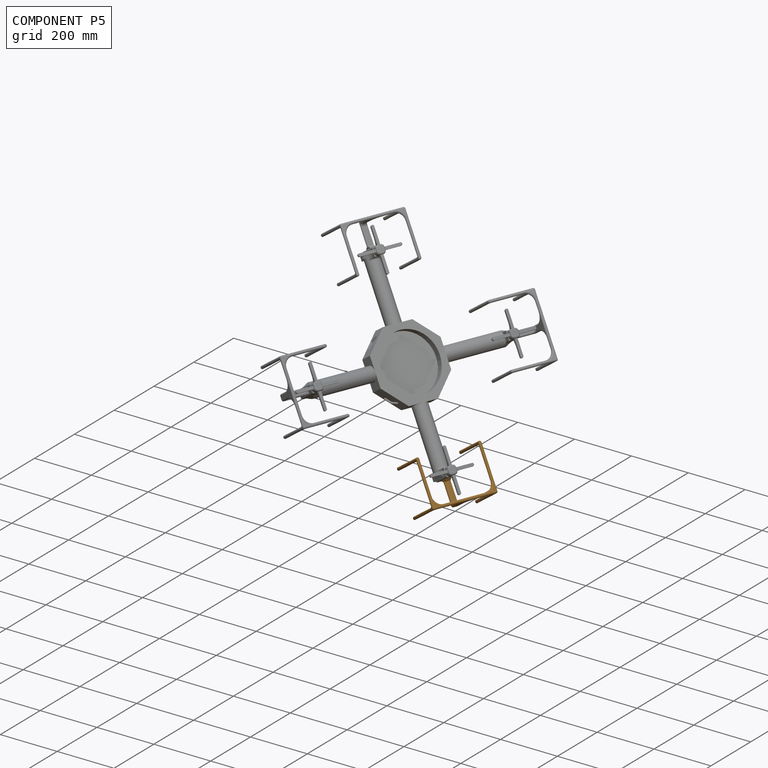
[diagram: component P5 — assembled]
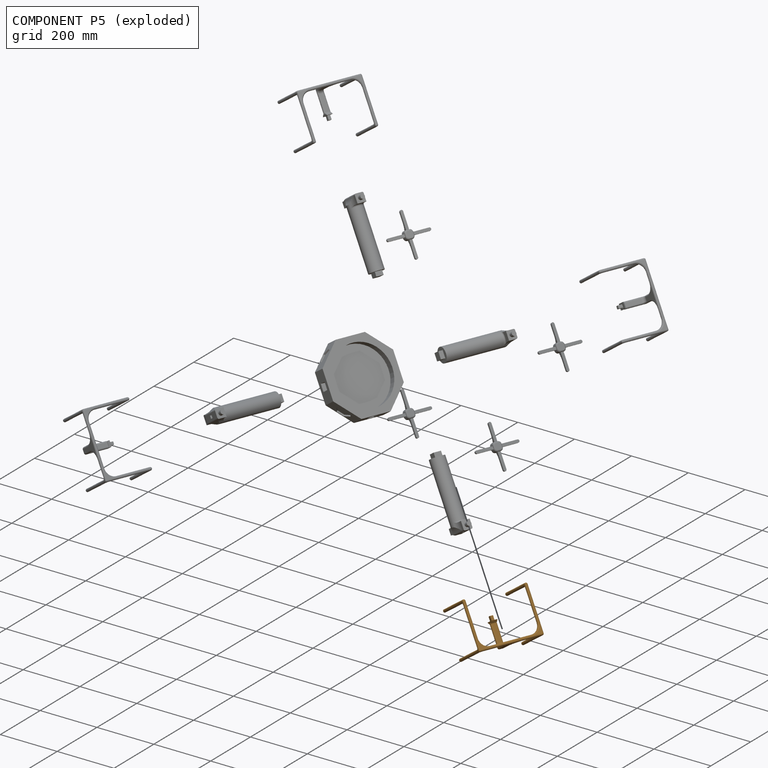
[diagram: component P5 — exploded]
COMPONENT P5 — geometry summary (no construction recipe available for this part):
  bounding box: 226.0 x 161.7 x 131.7 mm
  B-rep topology: 1 solid, 71 faces, 392 edges
  volume: 119252 mm^3 (2% of its bounding box)
  symmetry: mirror-symmetric across its x mid-plane
Held by: FASTENED mate "Fastened 5" to P6.
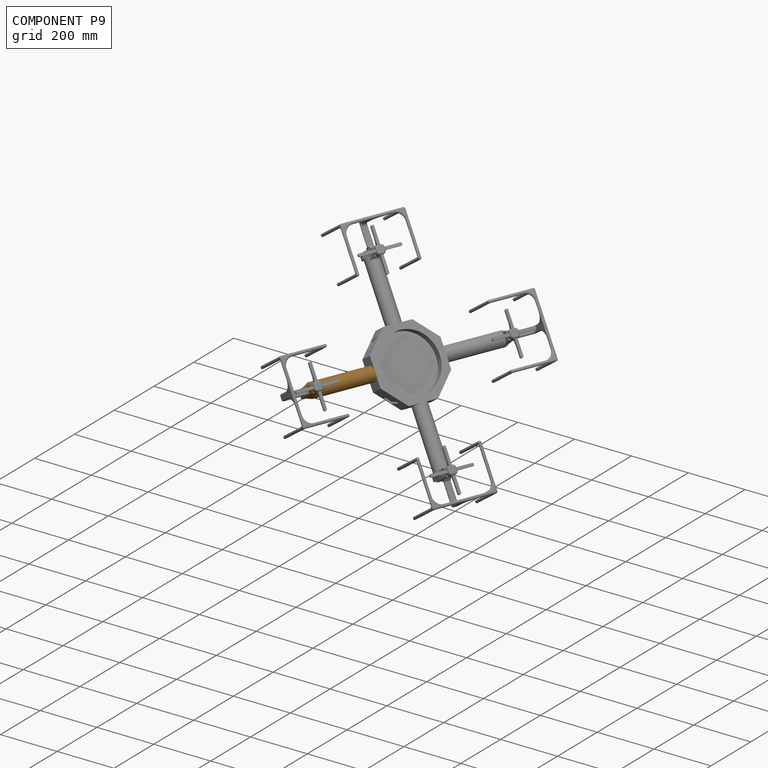
[diagram: component P9 — assembled]
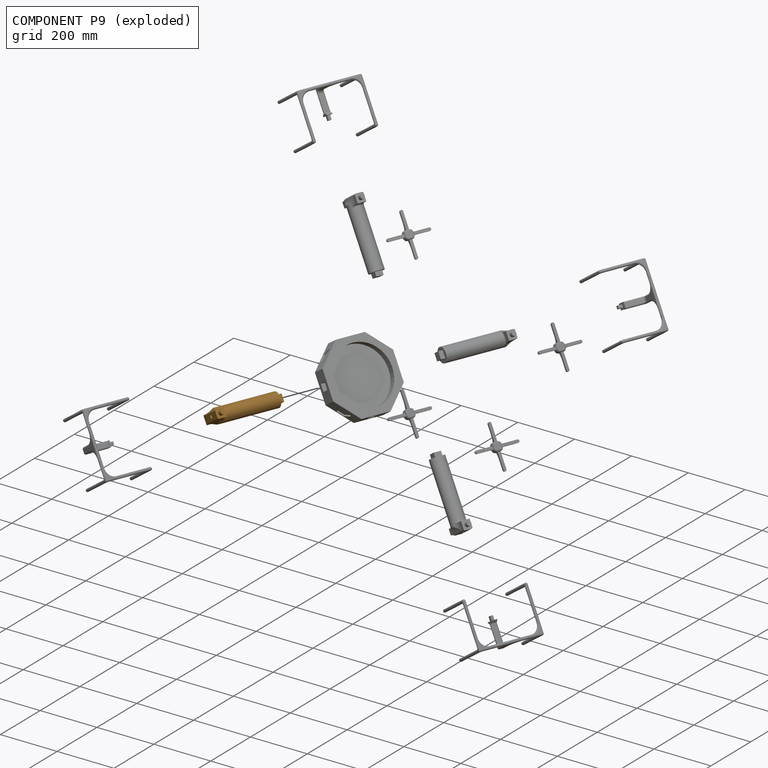
[diagram: component P9 — exploded]
COMPONENT P9 — geometry summary (no construction recipe available for this part):
  bounding box: 245.0 x 105.0 x 62.9 mm
  B-rep topology: 1 solid, 36 faces, 178 edges
  volume: 485700 mm^3 (30% of its bounding box)
  symmetry: mirror-symmetric across its y mid-plane
Held by: REVOLUTE mate "Revolute 3" to P1; FASTENED mate "Fastened 3" to P0; FASTENED mate "Fastened 8" to P7.
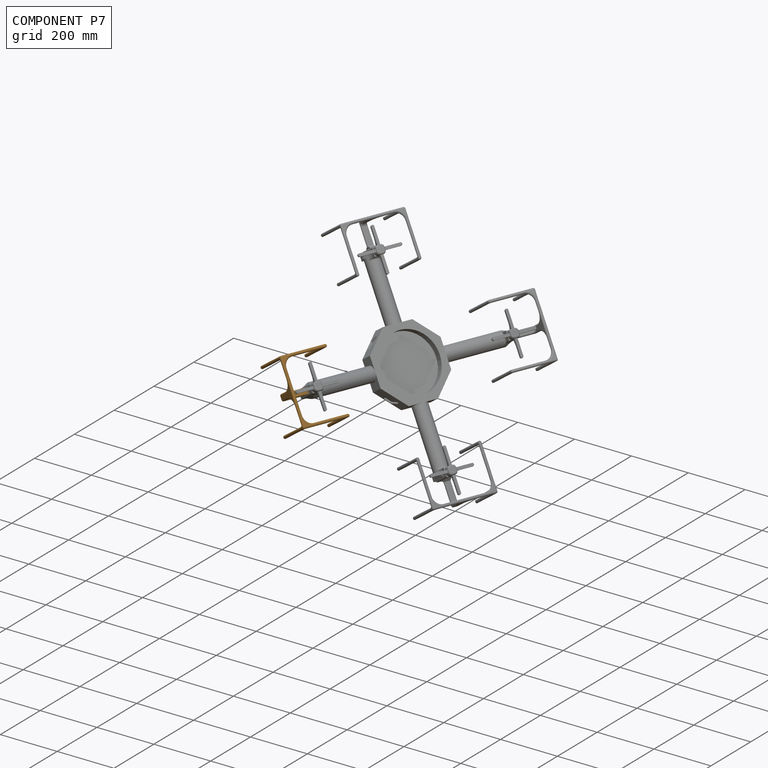
[diagram: component P7 — assembled]
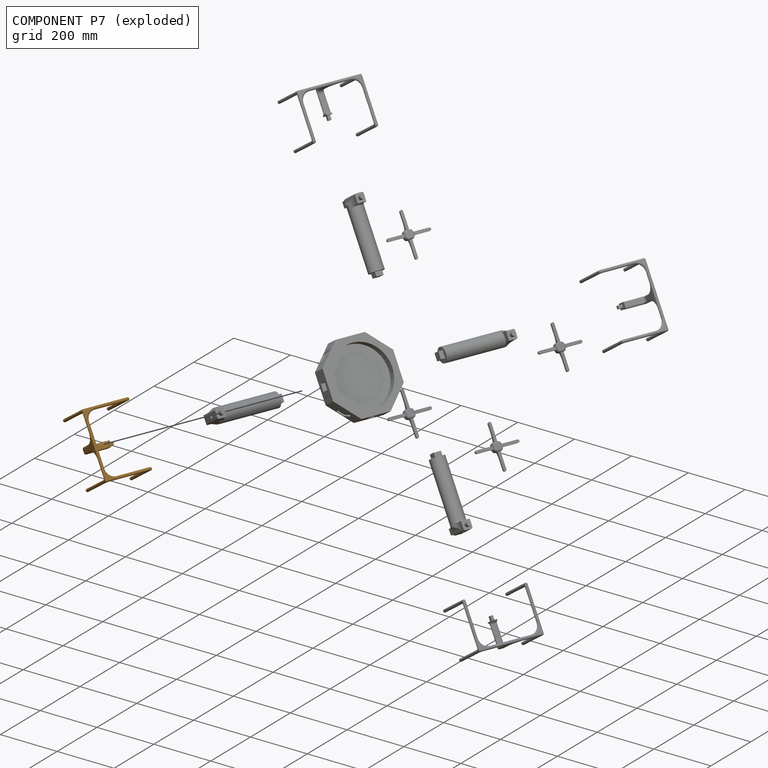
[diagram: component P7 — exploded]
COMPONENT P7 — geometry summary (no construction recipe available for this part):
  bounding box: 226.0 x 161.7 x 131.7 mm
  B-rep topology: 1 solid, 71 faces, 392 edges
  volume: 119252 mm^3 (2% of its bounding box)
  symmetry: mirror-symmetric across its x mid-plane
Held by: FASTENED mate "Fastened 8" to P9.
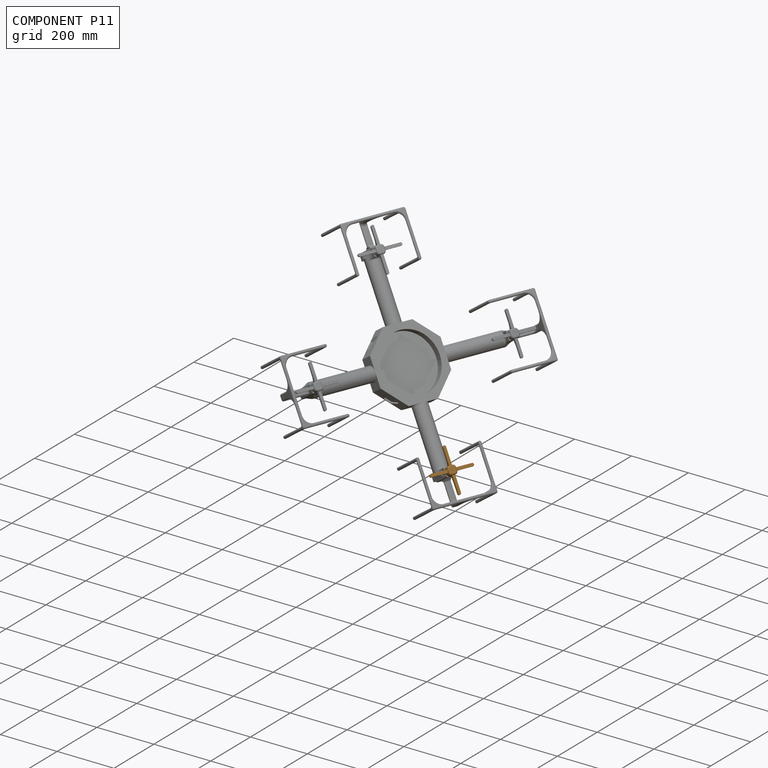
[diagram: component P11 — assembled]
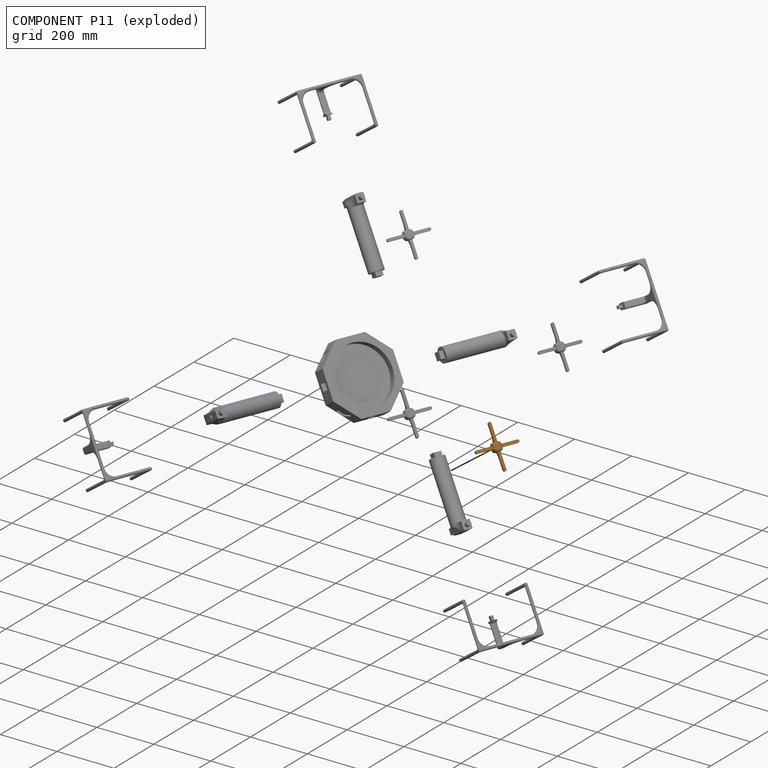
[diagram: component P11 — exploded]
COMPONENT P11 — geometry summary (no construction recipe available for this part):
  bounding box: 150.0 x 150.0 x 20.0 mm
  B-rep topology: 1 solid, 52 faces, 242 edges
  volume: 35812 mm^3 (8% of its bounding box)
  symmetry: 4-fold rotationally symmetric about the z axis; mirror-symmetric across its x mid-plane, y mid-plane
Held by: REVOLUTE mate "Revolute 1" to P6.
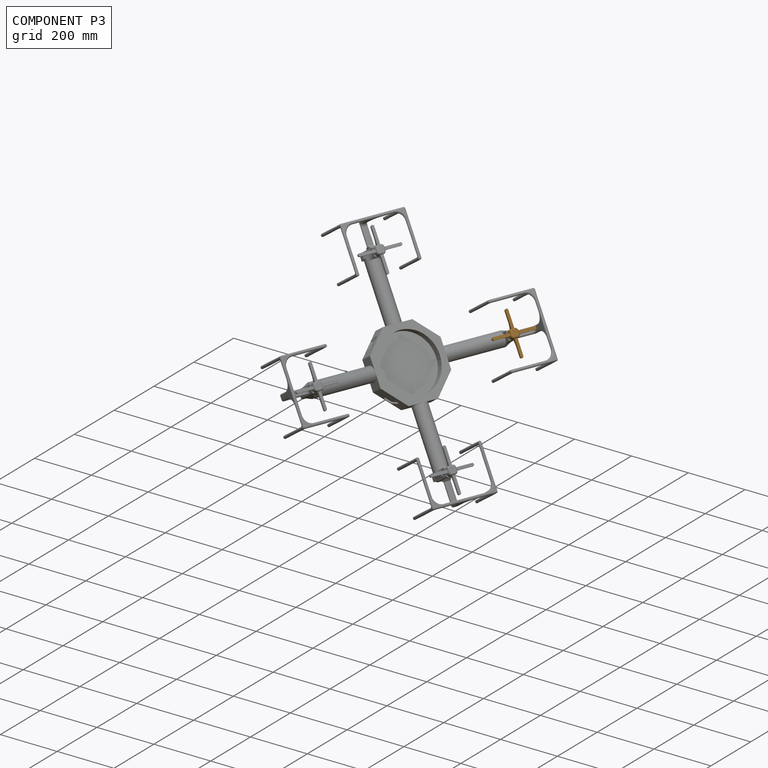
[diagram: component P3 — assembled]
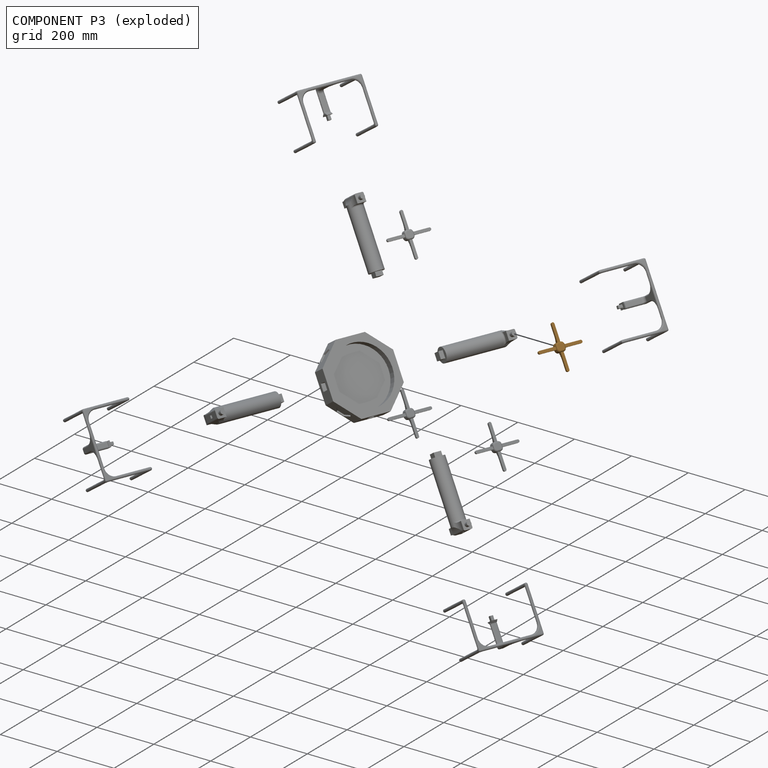
[diagram: component P3 — exploded]
COMPONENT P3 — geometry summary (no construction recipe available for this part):
  bounding box: 150.0 x 150.0 x 20.0 mm
  B-rep topology: 1 solid, 52 faces, 242 edges
  volume: 35812 mm^3 (8% of its bounding box)
  symmetry: 4-fold rotationally symmetric about the z axis; mirror-symmetric across its x mid-plane, y mid-plane
Held by: REVOLUTE mate "Revolute 2" to P10.
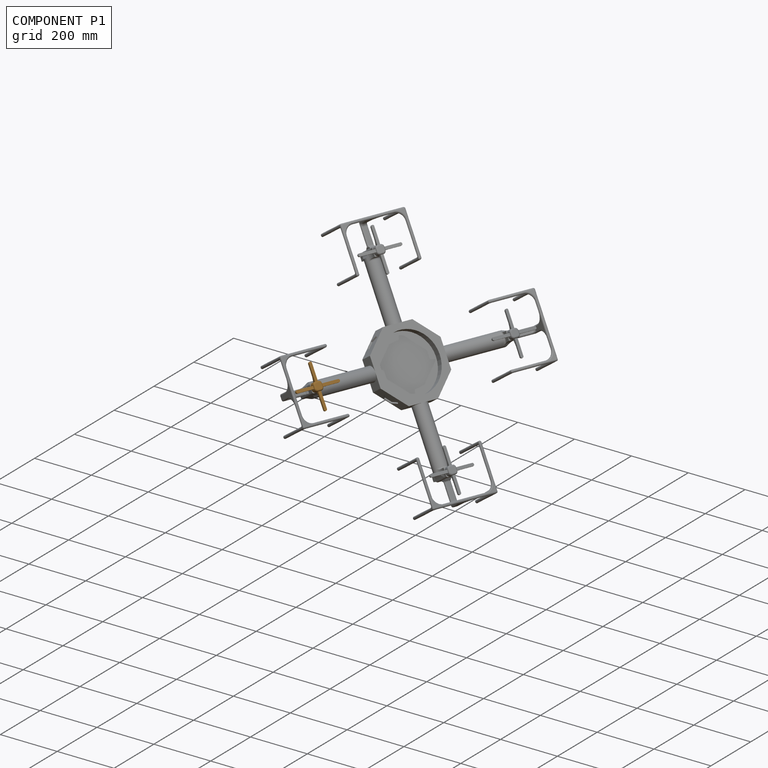
[diagram: component P1 — assembled]
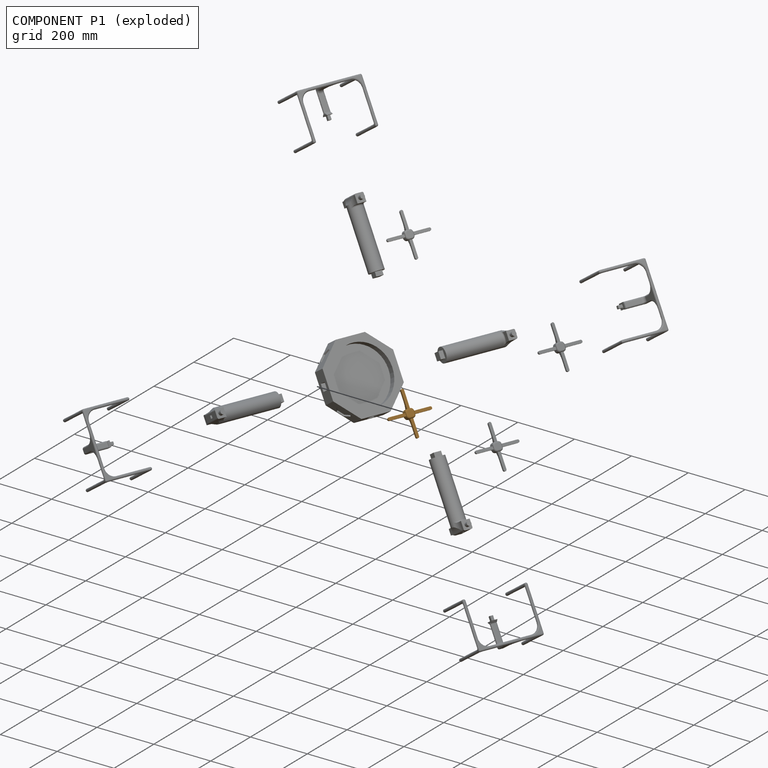
[diagram: component P1 — exploded]
COMPONENT P1 — geometry summary (no construction recipe available for this part):
  bounding box: 150.0 x 150.0 x 20.0 mm
  B-rep topology: 1 solid, 52 faces, 242 edges
  volume: 35812 mm^3 (8% of its bounding box)
  symmetry: 4-fold rotationally symmetric about the z axis; mirror-symmetric across its x mid-plane, y mid-plane
Held by: REVOLUTE mate "Revolute 3" to P9.
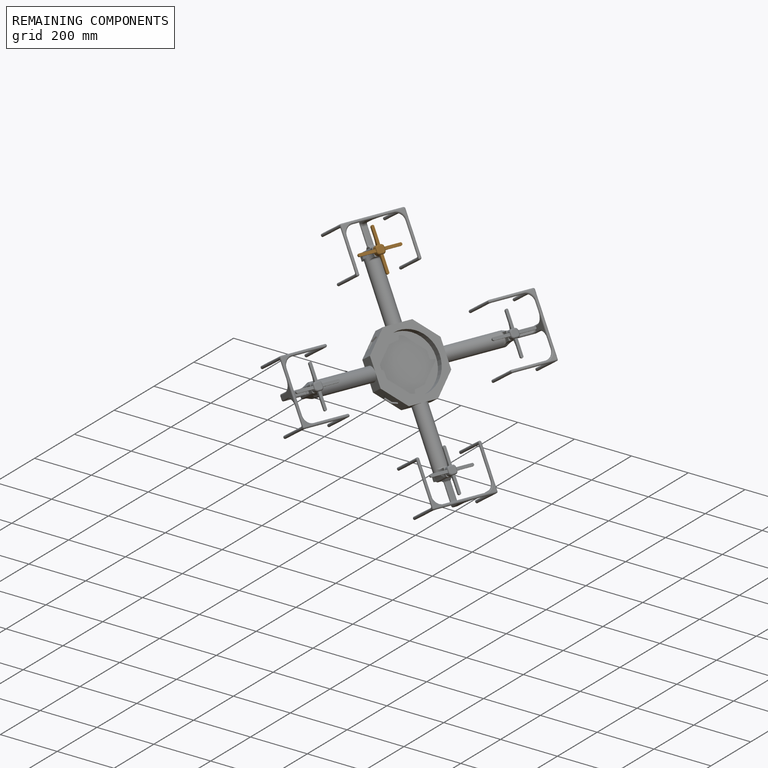
[diagram: remaining components — assembled]
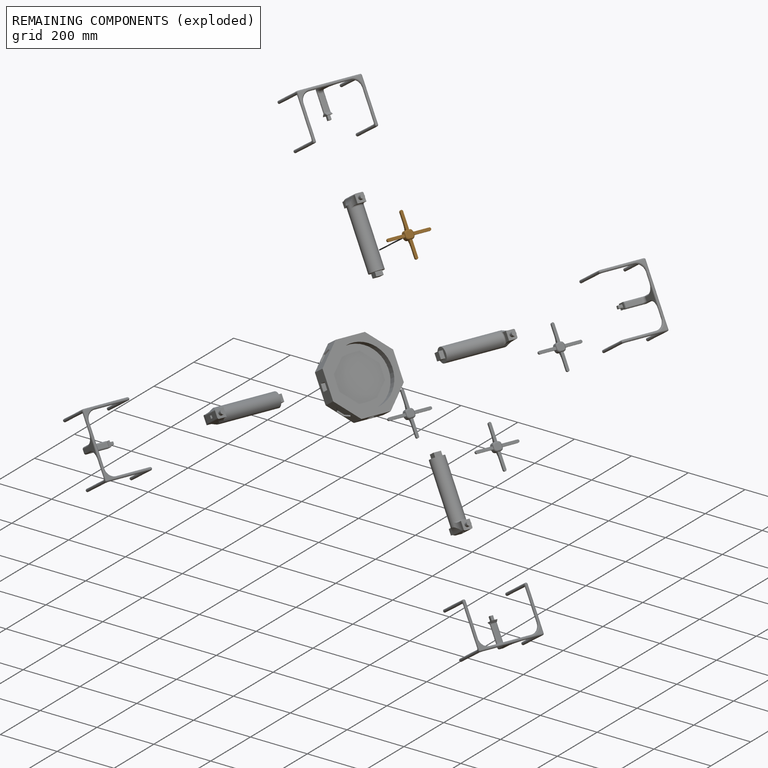
[diagram: remaining components — exploded]
REMAINING COMPONENTS (grouped) — the 1 components below fall outside the per-component tour by the significance rule stated above; both spotlight views highlight the whole group.
  P12: bounding box 150.0 x 150.0 x 20.0 mm, volume 35812 mm^3. Held by: REVOLUTE mate "Revolute 4" to P8.
PROVENANCE & LICENSES
Assembly (occurrences, transforms, mates, per-part STEP geometry): AutoMate dataset, Zenodo record 7776208, CC0.
Construction recipes: CADFS (HuggingFace VladPyatov/CADFS, CC-BY-4.0, layered over the ABC dataset), FeatureScript reconstruction programs keyed by ABC model id.
Join: ABC meta listings map ABC model id -> Onshape documentId; within a shared document, parts are matched by geometric signature (bounding-box dims + volume at 0.1% relative tolerance, exact B-rep face/solid counts).
Verification: 1 of this assembly's 13 components carries a recipe attachment, and every attachment is mesh-verified: the CADFS STEP and the AutoMate member STEP were compared as meshes in their shared local frame (symmetric sampled-point-to-mesh distance); worst across the 1 attachment: below the mesh-comparison resolution (tessellation chordal tolerance ~0.564 mm) on a 376 mm part.
Renders: orthographic iso camera (az 35 / el 25); the floor grid conveys scale (grid pitch printed in each image; no ruler). In the exploded view each component is displaced by its stored offset vector: the offsets alone carry the explosion direction (mate normal/axis signs are not orientation cues and do not encode it), and separation distances are assigned per mate-chain, not proportionally to assembly-order depth.
